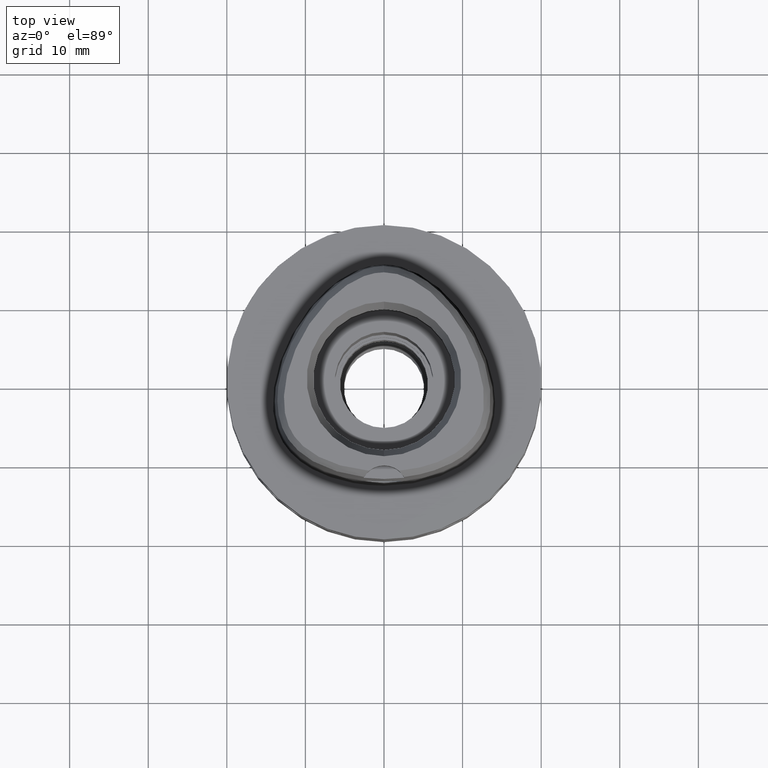
[diagram: clean part render]
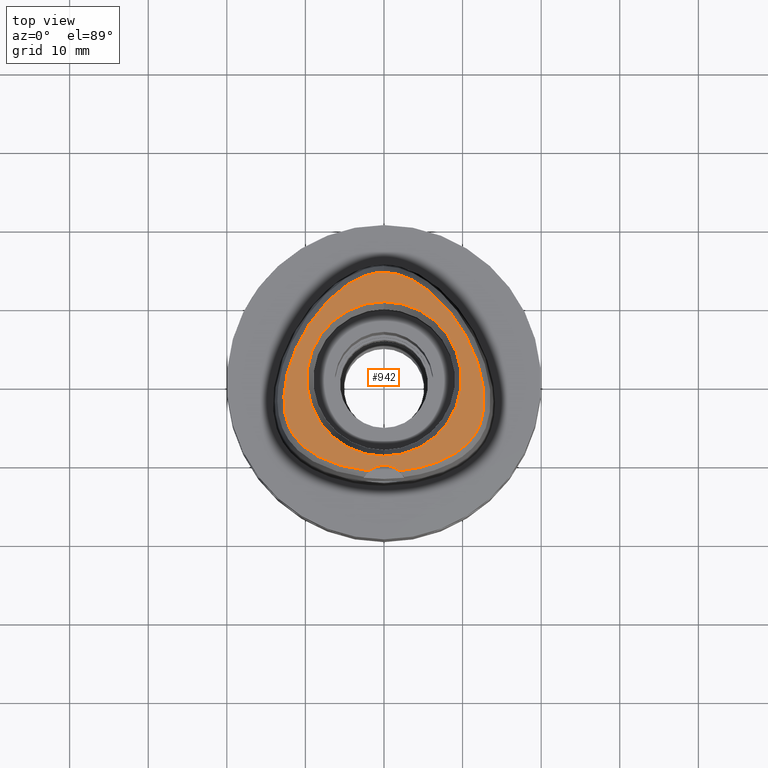
[diagram: same view with one face highlighted and labeled with its STEP entity id]
A machine part, top view. The second image highlights one B-rep face of the part: STEP entity #942.
In plain terms, the highlighted planar face has unit normal (0, 0, 1).
Its self-contained STEP definition (entity closure, byte-faithful):
#5 = CARTESIAN_POINT ( 'NONE',  ( -0.1649659295969042594, 13.57127880780240936, 24.00000000000654765 ) ) ;
#21 = CARTESIAN_POINT ( 'NONE',  ( 6.719766980793334454, -10.63148725729181443, 23.99999999999722533 ) ) ;
#22 = CARTESIAN_POINT ( 'NONE',  ( -11.58726606716848728, -7.068491431885327358, 23.99999999999938538 ) ) ;
#41 = CARTESIAN_POINT ( 'NONE',  ( 2.682152426756032604, -11.60797119915707043, 24.00000000000380140 ) ) ;
#91 = PLANE ( 'NONE',  #665 ) ;
#143 = DIRECTION ( 'NONE',  ( 1.000000000000000000, 0.0000000000000000000, 0.0000000000000000000 ) ) ;
#189 = ORIENTED_EDGE ( 'NONE', *, *, #2455, .F. ) ;
#194 = CARTESIAN_POINT ( 'NONE',  ( -1.335416903041000193E-10, 13.57127880780999796, 24.00000000000000000 ) ) ;
#267 = CARTESIAN_POINT ( 'NONE',  ( 7.606071530365426270, 9.460533301732533928, 23.99999999999872458 ) ) ;
#315 = CARTESIAN_POINT ( 'NONE',  ( 1.005831379202600573, 13.49945263942968054, 24.00000000000051870 ) ) ;
#332 = CARTESIAN_POINT ( 'NONE',  ( 10.41037096115208627, 5.527356888184128181, 24.00000000000288125 ) ) ;
#333 = CARTESIAN_POINT ( 'NONE',  ( -10.56030324369912776, -8.308636727331927929, 23.99999999999733546 ) ) ;
#378 = EDGE_CURVE ( 'NONE', #952, #1216, #2314, .T. ) ;
#382 = CARTESIAN_POINT ( 'NONE',  ( 12.05866527357068918, -6.201315129639374923, 24.00000000000058620 ) ) ;
#392 = B_SPLINE_CURVE_WITH_KNOTS ( 'NONE', 3,
 ( #1772, #2538, #3978, #2565, #738, #676, #2205, #1818, #2932, #1840, #4681, #3940, #333, #3296, #2159, #22, #3247, #3275, #2475, #2499, #1095, #4327, #4001, #760, #1791, #1478, #2517, #1435, #1411, #3594, #4031, #2910, #2121, #4397, #1119, #2959, #1502, #2864, #3680, #1051, #3636, #4352, #401, #3959, #717, #695, #2137, #5, #3613 ),
 .UNSPECIFIED., .F., .F.,
 ( 4, 1, 1, 1, 1, 1, 1, 1, 1, 1, 1, 1, 1, 1, 1, 1, 1, 1, 1, 1, 1, 1, 1, 1, 1, 1, 1, 1, 1, 1, 1, 1, 1, 1, 1, 1, 1, 1, 1, 1, 1, 1, 1, 1, 1, 1, 4 ),
 ( 0.0000000000000000000, 0.009873886129200037942, 0.03187668865969994769, 0.05387949119019996846, 0.07588229372080002033, 0.09788509625140007220, 0.1198878987818999819, 0.1418907013124000027, 0.1638935038429000235, 0.1858963063735000754, 0.2078991089039999851, 0.2299019114346000370, 0.2519047139651000577, 0.2739075164956000785, 0.2959103190260999883, 0.3179131215567000401, 0.3399159240872999810, 0.3619187266178000018, 0.3839215291482999115, 0.4059243316788000433, 0.4279271342093999841, 0.4499299367398998939, 0.4719327392704999458, 0.4939355418009000465, 0.5159383443314999873, 0.5379411468621000392, 0.5599439493925999489, 0.5819467519232000008, 0.6039495544535999905, 0.6259523569842000423, 0.6479551595146999521, 0.6699579620453000040, 0.6919607645757999137, 0.7139635671063000455, 0.7359663696367999552, 0.7579691721674000071, 0.7799719746980000590, 0.8019747772284999687, 0.8239775797591000206, 0.8459803822895000103, 0.8679831848201000621, 0.8899859873505999719, 0.9119887898811600557, 0.9339915924116999335, 0.9559943949422300413, 0.9779971974727700301, 1.000000000000000000 ),
 .UNSPECIFIED. ) ;
#399 = CARTESIAN_POINT ( 'NONE',  ( 2.094511630441718619, -11.66893426578004345, 24.00000000000171596 ) ) ;
#401 = CARTESIAN_POINT ( 'NONE',  ( -2.691801546375155230, 13.03762140634871791, 23.99999999999829825 ) ) ;
#422 = CARTESIAN_POINT ( 'NONE',  ( 0.0000000000000000000, -9.830642496535999086, 24.00000000000000000 ) ) ;
#564 = CARTESIAN_POINT ( 'NONE',  ( 4.650015056714077666, 12.01535282295559703, 24.00000000000125056 ) ) ;
#622 = CARTESIAN_POINT ( 'NONE',  ( 6.847466138750457176, 10.24233194362395771, 23.99999999999511502 ) ) ;
#630 = EDGE_LOOP ( 'NONE', ( #1693, #189 ) ) ;
#665 = AXIS2_PLACEMENT_3D ( 'NONE', #2662, #1977, #143 ) ;
#676 = CARTESIAN_POINT ( 'NONE',  ( -5.772139147997948250, -10.95484250004482085, 24.00000000000242650 ) ) ;
#695 = CARTESIAN_POINT ( 'NONE',  ( -1.004624940264408073, 13.49964524824854983, 24.00000000000680700 ) ) ;
#716 = CARTESIAN_POINT ( 'NONE',  ( 11.47056307656899143, 3.308874133465602441, 23.99999999999957012 ) ) ;
#717 = CARTESIAN_POINT ( 'NONE',  ( -1.540168727109926250, 13.39645525874208687, 23.99999999999537081 ) ) ;
#737 = CARTESIAN_POINT ( 'NONE',  ( 5.780202704591526519, -10.95235643153279703, 23.99999999999783284 ) ) ;
#738 = CARTESIAN_POINT ( 'NONE',  ( -4.742193981400562031, -11.23614232520670519, 24.00000000000167688 ) ) ;
#750 = DIRECTION ( 'NONE',  ( 0.0000000000000000000, 0.0000000000000000000, 1.000000000000000000 ) ) ;
#760 = CARTESIAN_POINT ( 'NONE',  ( -12.74861612881142392, -2.526660231389759481, 24.00000000000740741 ) ) ;
#918 = DIRECTION ( 'NONE',  ( 0.0000000000000000000, 0.0000000000000000000, 1.000000000000000000 ) ) ;
#942 = ADVANCED_FACE ( 'NONE', ( #2639, #4492 ), #91, .T. ) ;
#945 = CARTESIAN_POINT ( 'NONE',  ( 2.103367809293997581, 13.24394973622227845, 23.99999999999745626 ) ) ;
#952 = VERTEX_POINT ( 'NONE', #3749 ) ;
#1051 = CARTESIAN_POINT ( 'NONE',  ( -4.649494456246412000, 12.01569862248641130, 24.00000000000253308 ) ) ;
#1095 = CARTESIAN_POINT ( 'NONE',  ( -12.56273685366913462, -4.606827092195613815, 23.99999999999996803 ) ) ;
#1118 = CARTESIAN_POINT ( 'NONE',  ( 11.83717647605300094, -6.648420630655905050, 23.99999999999580780 ) ) ;
#1119 = CARTESIAN_POINT ( 'NONE',  ( -8.357232578964035596, 8.586563883649525053, 24.00000000000211031 ) ) ;
#1216 = VERTEX_POINT ( 'NONE', #3299 ) ;
#1403 = ORIENTED_EDGE ( 'NONE', *, *, #3750, .F. ) ;
#1410 = CARTESIAN_POINT ( 'NONE',  ( 7.567267065260987913, -10.28066430934386055, 23.99999999999747757 ) ) ;
#1411 = CARTESIAN_POINT ( 'NONE',  ( -11.88013947726376252, 2.210420412499511489, 23.99999999999711164 ) ) ;
#1433 = CARTESIAN_POINT ( 'NONE',  ( 10.56297693591954534, -8.306035104843967787, 23.99999999999893063 ) ) ;
#1435 = CARTESIAN_POINT ( 'NONE',  ( -12.20504609755019487, 1.147983555866421979, 23.99999999999703704 ) ) ;
#1442 = DIRECTION ( 'NONE',  ( 0.0000000000000000000, 0.0000000000000000000, 1.000000000000000000 ) ) ;
#1458 = CARTESIAN_POINT ( 'NONE',  ( 12.61485888652805087, -0.8159399761861859668, 24.00000000000645883 ) ) ;
#1477 = CARTESIAN_POINT ( 'NONE',  ( 3.643846516945088432, -11.46587366694381771, 24.00000000000386535 ) ) ;
#1478 = CARTESIAN_POINT ( 'NONE',  ( -12.61525294081405058, -0.8186751790038855336, 23.99999999999235811 ) ) ;
#1502 = CARTESIAN_POINT ( 'NONE',  ( -6.847495201776670370, 10.24231185839042624, 23.99999999999856826 ) ) ;
#1515 = AXIS2_PLACEMENT_3D ( 'NONE', #2214, #750, #3689 ) ;
#1693 = ORIENTED_EDGE ( 'NONE', *, *, #3354, .F. ) ;
#1722 = CARTESIAN_POINT ( 'NONE',  ( 8.356809247698487653, 8.587076979792398035, 23.99999999999797140 ) ) ;
#1772 = CARTESIAN_POINT ( 'NONE',  ( -1.908902231482000111, -11.68567671431999955, 24.00000000000000000 ) ) ;
#1790 = CARTESIAN_POINT ( 'NONE',  ( 12.71240944240853388, -1.703055140480836283, 24.00000000000057909 ) ) ;
#1791 = CARTESIAN_POINT ( 'NONE',  ( -12.71262584673675455, -1.705815288732617452, 24.00000000000097344 ) ) ;
#1811 = AXIS2_PLACEMENT_3D ( 'NONE', #4632, #918, #2366 ) ;
#1818 = CARTESIAN_POINT ( 'NONE',  ( -7.561120467872587625, -10.28345142432612214, 23.99999999999763389 ) ) ;
#1839 = CARTESIAN_POINT ( 'NONE',  ( 11.87933568351319913, 2.212772766010656866, 23.99999999999276312 ) ) ;
#1840 = CARTESIAN_POINT ( 'NONE',  ( -8.993364728475569336, -9.521626202594088539, 24.00000000000121148 ) ) ;
#1857 = CARTESIAN_POINT ( 'NONE',  ( 12.66713497291343593, -3.971396687641980172, 24.00000000000560263 ) ) ;
#1877 = CARTESIAN_POINT ( 'NONE',  ( 11.29648905054946795, -7.481873590176601141, 23.99999999999931788 ) ) ;
#1977 = DIRECTION ( 'NONE',  ( 0.0000000000000000000, 0.0000000000000000000, 1.000000000000000000 ) ) ;
#2019 = CARTESIAN_POINT ( 'NONE',  ( 6.095079845025110465, 10.92785127078031415, 23.99999999999646505 ) ) ;
#2121 = CARTESIAN_POINT ( 'NONE',  ( -9.776246037422239965, 6.601694411330527146, 24.00000000000663292 ) ) ;
#2136 = CARTESIAN_POINT ( 'NONE',  ( 11.58874808008552826, -7.066197077816528171, 23.99999999999978328 ) ) ;
#2137 = CARTESIAN_POINT ( 'NONE',  ( -0.4900182128077751331, 13.55873082895846693, 24.00000000000681410 ) ) ;
#2159 = CARTESIAN_POINT ( 'NONE',  ( -11.29465612497009275, -7.484286614359917600, 24.00000000000387246 ) ) ;
#2204 = CARTESIAN_POINT ( 'NONE',  ( 12.25557177138757403, -5.713684847254856258, 24.00000000000114042 ) ) ;
#2205 = CARTESIAN_POINT ( 'NONE',  ( -6.712679994720472720, -10.63416489130695197, 24.00000000000875033 ) ) ;
#2214 = CARTESIAN_POINT ( 'NONE',  ( 0.0000000000000000000, 1.499580005555999857E-14, 24.00000000000000000 ) ) ;
#2222 = CARTESIAN_POINT ( 'NONE',  ( 8.997867597935544026, -9.518809110956212294, 23.99999999999256417 ) ) ;
#2314 = CIRCLE ( 'NONE', #1811, 2.999999999999998668 ) ;
#2366 = DIRECTION ( 'NONE',  ( 0.6363002504554283734, 0.7714415021700344877, 0.0000000000000000000 ) ) ;
#2371 = CARTESIAN_POINT ( 'NONE',  ( 1.541313514288407571, 13.39618800248911867, 24.00000000000132516 ) ) ;
#2395 = CARTESIAN_POINT ( 'NONE',  ( 2.692731913842530300, 13.03725377846528843, 23.99999999999807443 ) ) ;
#2455 = EDGE_CURVE ( 'NONE', #4237, #3181, #2953, .T. ) ;
#2475 = CARTESIAN_POINT ( 'NONE',  ( -12.25469206170854797, -5.716132091641409119, 24.00000000000077804 ) ) ;
#2499 = CARTESIAN_POINT ( 'NONE',  ( -12.42392521664306848, -5.185948956749275141, 24.00000000000645883 ) ) ;
#2517 = CARTESIAN_POINT ( 'NONE',  ( -12.44854562273084220, 0.1339138360837797137, 24.00000000000505551 ) ) ;
#2537 = CARTESIAN_POINT ( 'NONE',  ( 8.325294977167953192, -9.907519125942085836, 23.99999999999561595 ) ) ;
#2538 = CARTESIAN_POINT ( 'NONE',  ( -2.090687641573896638, -11.66928185012243446, 23.99999999999809575 ) ) ;
#2565 = CARTESIAN_POINT ( 'NONE',  ( -3.634083631275776938, -11.46763769349881734, 24.00000000000126832 ) ) ;
#2586 = CARTESIAN_POINT ( 'NONE',  ( 10.95628640552464006, -7.895061898324089000, 24.00000000000092371 ) ) ;
#2639 = FACE_OUTER_BOUND ( 'NONE', #2767, .T. ) ;
#2662 = CARTESIAN_POINT ( 'NONE',  ( 0.0000000000000000000, 0.0000000000000000000, 24.00000000000000000 ) ) ;
#2737 = CARTESIAN_POINT ( 'NONE',  ( 5.360995407852937156, 11.51670950506146873, 23.99999999999378986 ) ) ;
#2767 = EDGE_LOOP ( 'NONE', ( #1403, #3130, #3790 ) ) ;
#2864 = CARTESIAN_POINT ( 'NONE',  ( -6.094907065610188468, 10.92800604363377026, 23.99999999999769429 ) ) ;
#2890 = CARTESIAN_POINT ( 'NONE',  ( 12.73107502715472528, -3.278999632794873165, 24.00000000000460076 ) ) ;
#2910 = CARTESIAN_POINT ( 'NONE',  ( -10.41120247049415148, 5.525862884540915232, 24.00000000000588329 ) ) ;
#2931 = CARTESIAN_POINT ( 'NONE',  ( 10.97862720533259662, 4.421873472736923993, 24.00000000000026290 ) ) ;
#2932 = CARTESIAN_POINT ( 'NONE',  ( -8.320010339570091062, -9.910347637802830789, 24.00000000000207123 ) ) ;
#2953 = CIRCLE ( 'NONE', #4093, 9.830642496535999086 ) ;
#2959 = CARTESIAN_POINT ( 'NONE',  ( -7.606300872726281526, 9.460291049260460383, 24.00000000000155254 ) ) ;
#2965 = DIRECTION ( 'NONE',  ( 0.0000000000000000000, 1.000000000000000000, 0.0000000000000000000 ) ) ;
#3111 = EDGE_CURVE ( 'NONE', #1216, #3491, #392, .T. ) ;
#3129 = CARTESIAN_POINT ( 'NONE',  ( 0.1653041921268374181, 13.57127880781455254, 23.99999999999872458 ) ) ;
#3130 = ORIENTED_EDGE ( 'NONE', *, *, #3111, .F. ) ;
#3180 = CARTESIAN_POINT ( 'NONE',  ( 9.085466894420761719, 7.629604351704307952, 24.00000000000474998 ) ) ;
#3181 = VERTEX_POINT ( 'NONE', #422 ) ;
#3246 = CARTESIAN_POINT ( 'NONE',  ( 10.11006658375164946, -8.714727269571222124, 23.99999999999453593 ) ) ;
#3247 = CARTESIAN_POINT ( 'NONE',  ( -11.83593754558362043, -6.650702378112667290, 24.00000000000393996 ) ) ;
#3275 = CARTESIAN_POINT ( 'NONE',  ( -12.05760136210488476, -6.203690849628880954, 24.00000000000129674 ) ) ;
#3282 = CARTESIAN_POINT ( 'NONE',  ( 0.0000000000000000000, 1.499580005555999857E-14, 24.00000000000000000 ) ) ;
#3296 = CARTESIAN_POINT ( 'NONE',  ( -10.95406941133074241, -7.897563445517728375, 24.00000000000413181 ) ) ;
#3299 = CARTESIAN_POINT ( 'NONE',  ( -1.908902231482000111, -11.68567671431999955, 24.00000000000000000 ) ) ;
#3339 = CARTESIAN_POINT ( 'NONE',  ( 12.20434663574328660, 1.150526658651217504, 23.99999999999939249 ) ) ;
#3354 = EDGE_CURVE ( 'NONE', #3181, #4237, #3415, .T. ) ;
#3415 = CIRCLE ( 'NONE', #1515, 9.830642496535999086 ) ;
#3491 = VERTEX_POINT ( 'NONE', #194 ) ;
#3508 = B_SPLINE_CURVE_WITH_KNOTS ( 'NONE', 3,
 ( #3543, #3129, #4226, #315, #2371, #945, #2395, #3895, #3840, #564, #2737, #2019, #622, #267, #1722, #3180, #4372, #332, #2931, #716, #1839, #3339, #3977, #1458, #1790, #4326, #2890, #1857, #4000, #4396, #2204, #382, #1118, #2136, #1877, #2586, #1433, #3246, #3612, #2222, #2537, #1410, #21, #737, #4702, #1477, #41, #399, #3679 ),
 .UNSPECIFIED., .F., .F.,
 ( 4, 1, 1, 1, 1, 1, 1, 1, 1, 1, 1, 1, 1, 1, 1, 1, 1, 1, 1, 1, 1, 1, 1, 1, 1, 1, 1, 1, 1, 1, 1, 1, 1, 1, 1, 1, 1, 1, 1, 1, 1, 1, 1, 1, 1, 1, 4 ),
 ( 0.0000000000000000000, 0.02199885823280001151, 0.04399771645910000029, 0.06599657468529995796, 0.08799543291160005776, 0.1099942911379000465, 0.1319931493642000353, 0.1539920075905000241, 0.1759908658166000617, 0.1979897240429000504, 0.2199885822692000392, 0.2419874404955000280, 0.2639862987218000168, 0.2859851569481000055, 0.3079840151743000742, 0.3299828734006000630, 0.3519817316269000518, 0.3739805898531999295, 0.3959794480795000293, 0.4179783063057000980, 0.4399771645319999758, 0.4619760227582999645, 0.4839748809845999533, 0.5059737392109000531, 0.5279725974371000108, 0.5499714556633999996, 0.5719703138896999883, 0.5939691721160000881, 0.6159680303423000769, 0.6379668885684999236, 0.6599657467947999123, 0.6819646050210999011, 0.7039634632474000009, 0.7259623214736999897, 0.7479611796998999473, 0.7699600379262000471, 0.7919588961525000359, 0.8139577543788000247, 0.8359566126051000134, 0.8579554708314000022, 0.8799543290575000398, 0.9019531872838499886, 0.9239520455101499774, 0.9459509037364199902, 0.9679497619626999949, 0.9899486201889799997, 1.000000000000000000 ),
 .UNSPECIFIED. ) ;
#3543 = CARTESIAN_POINT ( 'NONE',  ( -1.335416903041000193E-10, 13.57127880780999796, 24.00000000000000000 ) ) ;
#3594 = CARTESIAN_POINT ( 'NONE',  ( -11.47142705079909852, 3.306767418047316109, 23.99999999999787548 ) ) ;
#3612 = CARTESIAN_POINT ( 'NONE',  ( 9.590814837412933613, -9.119735848214469698, 23.99999999999905853 ) ) ;
#3613 = CARTESIAN_POINT ( 'NONE',  ( -1.335416903041000193E-10, 13.57127880780999796, 24.00000000000000000 ) ) ;
#3636 = CARTESIAN_POINT ( 'NONE',  ( -3.965203405004056769, 12.43107680024658457, 23.99999999999524647 ) ) ;
#3679 = CARTESIAN_POINT ( 'NONE',  ( 1.908900751366000126, -11.68567549349000068, 24.00000000000000000 ) ) ;
#3680 = CARTESIAN_POINT ( 'NONE',  ( -5.360644550569200639, 11.51697883926297372, 23.99999999999657874 ) ) ;
#3689 = DIRECTION ( 'NONE',  ( 0.0000000000000000000, -1.000000000000000000, 0.0000000000000000000 ) ) ;
#3749 = CARTESIAN_POINT ( 'NONE',  ( 1.908900751366000126, -11.68567549349000068, 24.00000000000000000 ) ) ;
#3750 = EDGE_CURVE ( 'NONE', #3491, #952, #3508, .T. ) ;
#3790 = ORIENTED_EDGE ( 'NONE', *, *, #378, .F. ) ;
#3840 = CARTESIAN_POINT ( 'NONE',  ( 3.965883677374743677, 12.43068963207847411, 23.99999999999958789 ) ) ;
#3895 = CARTESIAN_POINT ( 'NONE',  ( 3.312825528086609683, 12.76889704495283695, 24.00000000000023803 ) ) ;
#3940 = CARTESIAN_POINT ( 'NONE',  ( -10.10686734004836929, -8.717417447991447688, 24.00000000000235900 ) ) ;
#3959 = CARTESIAN_POINT ( 'NONE',  ( -2.102339319506597359, 13.24427330329382713, 23.99999999999581490 ) ) ;
#3973 = CARTESIAN_POINT ( 'NONE',  ( 0.0000000000000000000, 9.830642496535999086, 24.00000000000000000 ) ) ;
#3977 = CARTESIAN_POINT ( 'NONE',  ( 12.44798655948986266, 0.1365840453713549896, 24.00000000000083844 ) ) ;
#3978 = CARTESIAN_POINT ( 'NONE',  ( -2.674008066188343857, -11.60894038318411070, 23.99999999999997513 ) ) ;
#4000 = CARTESIAN_POINT ( 'NONE',  ( 12.56325666868236723, -4.604231586669055964, 23.99999999999596056 ) ) ;
#4001 = CARTESIAN_POINT ( 'NONE',  ( -12.73092184452466036, -3.281714902708291248, 23.99999999999797851 ) ) ;
#4031 = CARTESIAN_POINT ( 'NONE',  ( -10.97950574081523456, 4.420048049596854156, 24.00000000000562750 ) ) ;
#4093 = AXIS2_PLACEMENT_3D ( 'NONE', #3282, #1442, #2965 ) ;
#4226 = CARTESIAN_POINT ( 'NONE',  ( 0.4912642629215988044, 13.55865141013693886, 23.99999999999712230 ) ) ;
#4237 = VERTEX_POINT ( 'NONE', #3973 ) ;
#4326 = CARTESIAN_POINT ( 'NONE',  ( 12.74858362814950574, -2.523908814685761115, 23.99999999999661071 ) ) ;
#4327 = CARTESIAN_POINT ( 'NONE',  ( -12.66679745937409862, -3.974058027850772667, 24.00000000000130385 ) ) ;
#4352 = CARTESIAN_POINT ( 'NONE',  ( -3.312010815207238057, 12.76928825342367801, 23.99999999999661782 ) ) ;
#4372 = CARTESIAN_POINT ( 'NONE',  ( 9.775510958009402174, 6.602848413448722198, 24.00000000000088818 ) ) ;
#4396 = CARTESIAN_POINT ( 'NONE',  ( 12.42462515087603592, -5.183426978152209763, 23.99999999999938183 ) ) ;
#4397 = CARTESIAN_POINT ( 'NONE',  ( -9.086067383145843834, 7.628776179868660634, 24.00000000000032685 ) ) ;
#4492 = FACE_BOUND ( 'NONE', #630, .T. ) ;
#4632 = CARTESIAN_POINT ( 'NONE',  ( 0.0000000000000000000, -14.00000000000000000, 24.00000000000000000 ) ) ;
#4681 = CARTESIAN_POINT ( 'NONE',  ( -9.587006019868894668, -9.122502708652341141, 23.99999999999673861 ) ) ;
#4702 = CARTESIAN_POINT ( 'NONE',  ( 4.751308116302628726, -11.23394664105838636, 24.00000000000063238 ) ) ;